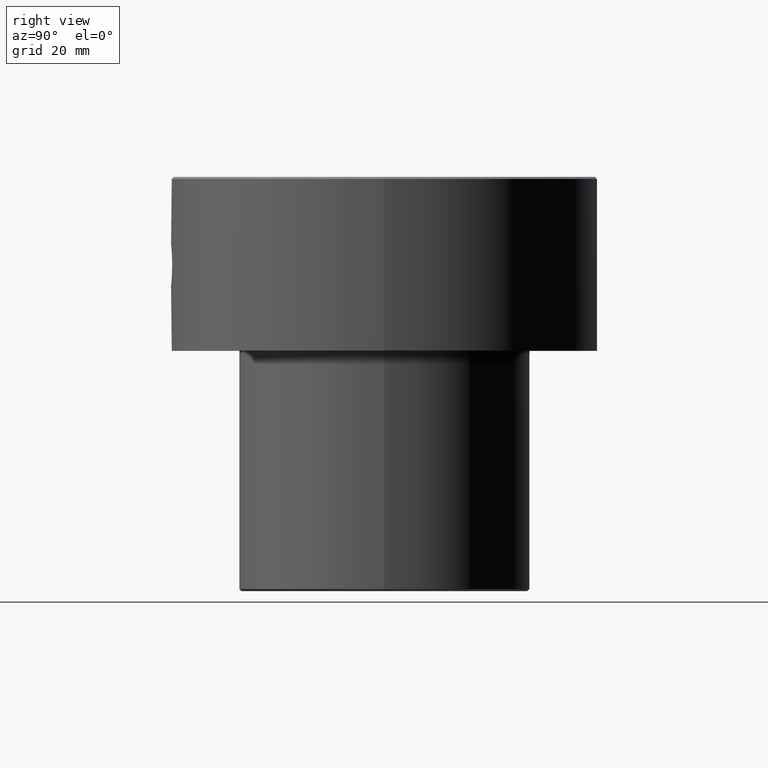
[diagram: clean part render]
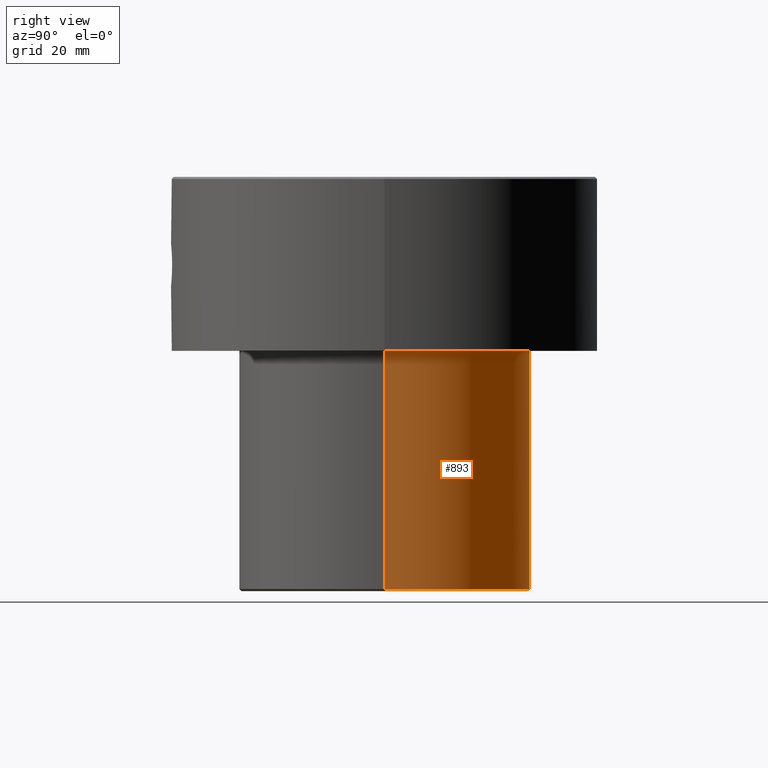
[diagram: same view with one face highlighted and labeled with its STEP entity id]
A machine part, right view. The second image highlights one B-rep face of the part: STEP entity #893.
In plain terms, the highlighted cylindrical surface (partial cylindrical patch) has radius 35 mm, axis along (-0, -0, 1).
Its self-contained STEP definition (entity closure, byte-faithful):
#6 = DIRECTION ( 'NONE',  ( 1.000000000000000000, 0.000000000000000000, 0.000000000000000000 ) ) ;
#36 = CARTESIAN_POINT ( 'NONE',  ( -35.00000000000000000, 4.286263797015736496E-15, 0.000000000000000000 ) ) ;
#177 = VERTEX_POINT ( 'NONE', #986 ) ;
#180 = EDGE_CURVE ( 'NONE', #177, #1195, #895, .T. ) ;
#247 = AXIS2_PLACEMENT_3D ( 'NONE', #563, #951, #6 ) ;
#256 = EDGE_CURVE ( 'NONE', #683, #177, #944, .T. ) ;
#328 = CIRCLE ( 'NONE', #1075, 35.00000000000000000 ) ;
#358 = FACE_OUTER_BOUND ( 'NONE', #966, .T. ) ;
#377 = VERTEX_POINT ( 'NONE', #1084 ) ;
#435 = CARTESIAN_POINT ( 'NONE',  ( 35.00000000000000000, 0.000000000000000000, -99.50000000000004263 ) ) ;
#478 = CARTESIAN_POINT ( 'NONE',  ( 0.000000000000000000, 0.000000000000000000, -42.00000000000000000 ) ) ;
#485 = VECTOR ( 'NONE', #804, 1000.000000000000000 ) ;
#563 = CARTESIAN_POINT ( 'NONE',  ( 0.000000000000000000, 0.000000000000000000, 0.000000000000000000 ) ) ;
#584 = CARTESIAN_POINT ( 'NONE',  ( 35.00000000000000000, 0.000000000000000000, 0.000000000000000000 ) ) ;
#674 = AXIS2_PLACEMENT_3D ( 'NONE', #761, #1053, #1061 ) ;
#683 = VERTEX_POINT ( 'NONE', #435 ) ;
#747 = CARTESIAN_POINT ( 'NONE',  ( -35.00000000000000000, 4.286263797015736496E-15, -42.00000000000000000 ) ) ;
#761 = CARTESIAN_POINT ( 'NONE',  ( 0.000000000000000000, 0.000000000000000000, -99.50000000000004263 ) ) ;
#779 = LINE ( 'NONE', #584, #1161 ) ;
#804 = DIRECTION ( 'NONE',  ( -0.000000000000000000, -0.000000000000000000, 1.000000000000000000 ) ) ;
#830 = ORIENTED_EDGE ( 'NONE', *, *, #256, .T. ) ;
#871 = ORIENTED_EDGE ( 'NONE', *, *, #1230, .F. ) ;
#872 = DIRECTION ( 'NONE',  ( -0.000000000000000000, -0.000000000000000000, 1.000000000000000000 ) ) ;
#887 = EDGE_CURVE ( 'NONE', #377, #1195, #328, .T. ) ;
#893 = ADVANCED_FACE ( 'NONE', ( #358 ), #1046, .T. ) ;
#895 = LINE ( 'NONE', #36, #485 ) ;
#907 = ORIENTED_EDGE ( 'NONE', *, *, #180, .T. ) ;
#944 = CIRCLE ( 'NONE', #674, 35.00000000000000000 ) ;
#951 = DIRECTION ( 'NONE',  ( -0.000000000000000000, -0.000000000000000000, 1.000000000000000000 ) ) ;
#966 = EDGE_LOOP ( 'NONE', ( #830, #907, #1168, #871 ) ) ;
#986 = CARTESIAN_POINT ( 'NONE',  ( -35.00000000000000000, 4.286263797015736496E-15, -99.50000000000004263 ) ) ;
#1046 = CYLINDRICAL_SURFACE ( 'NONE', #247, 35.00000000000000000 ) ;
#1053 = DIRECTION ( 'NONE',  ( -0.000000000000000000, -0.000000000000000000, 1.000000000000000000 ) ) ;
#1061 = DIRECTION ( 'NONE',  ( -1.000000000000000000, 0.000000000000000000, 0.000000000000000000 ) ) ;
#1075 = AXIS2_PLACEMENT_3D ( 'NONE', #478, #872, #1139 ) ;
#1084 = CARTESIAN_POINT ( 'NONE',  ( 35.00000000000000000, 0.000000000000000000, -42.00000000000000000 ) ) ;
#1139 = DIRECTION ( 'NONE',  ( 1.000000000000000000, 0.000000000000000000, 0.000000000000000000 ) ) ;
#1160 = DIRECTION ( 'NONE',  ( -0.000000000000000000, -0.000000000000000000, 1.000000000000000000 ) ) ;
#1161 = VECTOR ( 'NONE', #1160, 1000.000000000000000 ) ;
#1168 = ORIENTED_EDGE ( 'NONE', *, *, #887, .F. ) ;
#1195 = VERTEX_POINT ( 'NONE', #747 ) ;
#1230 = EDGE_CURVE ( 'NONE', #683, #377, #779, .T. ) ;